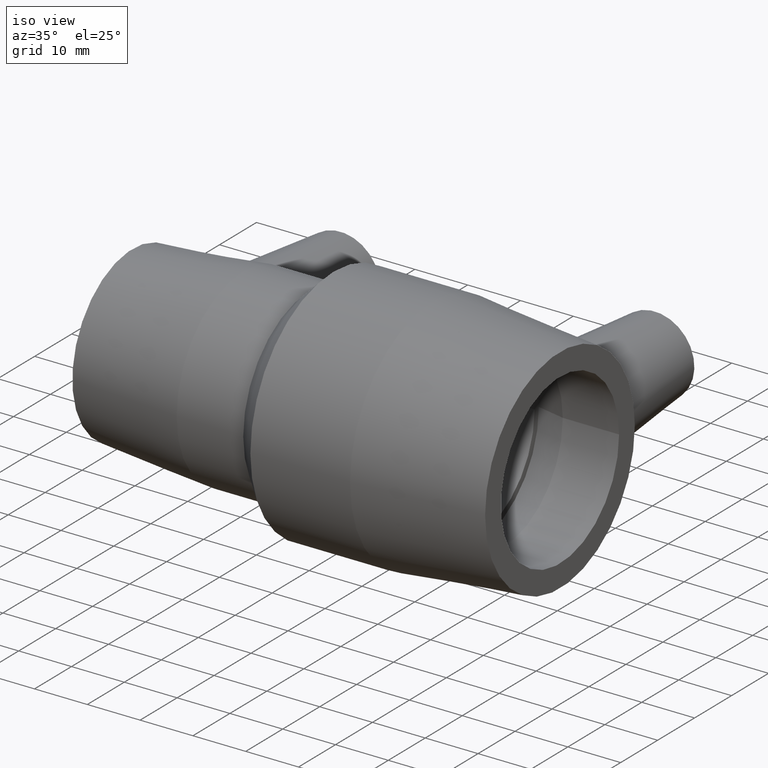
[diagram: clean part render]
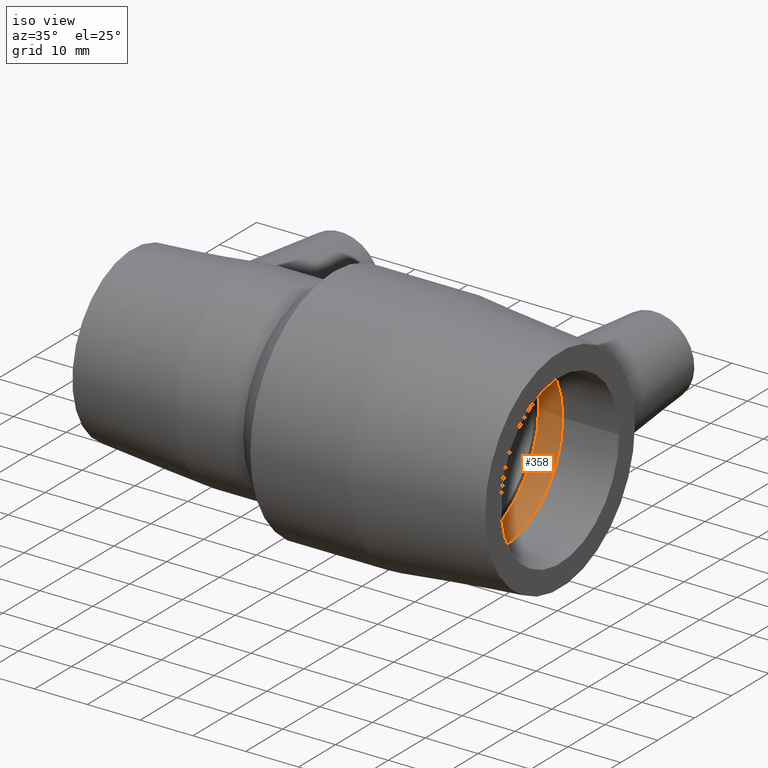
[diagram: same view with one face highlighted and labeled with its STEP entity id]
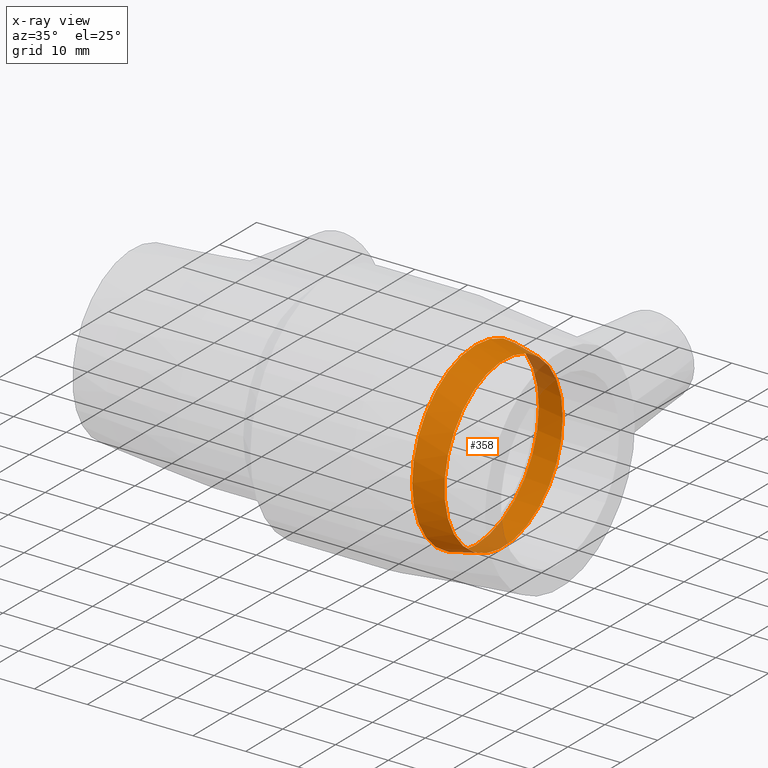
[diagram: x-ray of the same camera — body ghosted, the highlighted face saturated]
A machine part, iso view. The second image highlights one B-rep face of the part: STEP entity #358.
The next image is the same camera in x-ray: the body ghosted, the highlighted face saturated — about 10% of this face is hidden behind the body in this view.
In plain terms, the highlighted conical surface has half-angle 12 deg.
Its self-contained STEP definition (entity closure, byte-faithful):
#24=CONICAL_SURFACE('',#410,16.5668174977867,12.);
#45=FACE_BOUND('',#138,.T.);
#88=FACE_OUTER_BOUND('',#137,.T.);
#137=EDGE_LOOP('',(#299));
#138=EDGE_LOOP('',(#300));
#180=CIRCLE('',#409,16.);
#181=CIRCLE('',#411,17.1336349955734);
#212=VERTEX_POINT('',#697);
#213=VERTEX_POINT('',#700);
#246=EDGE_CURVE('',#212,#212,#180,.T.);
#247=EDGE_CURVE('',#213,#213,#181,.T.);
#299=ORIENTED_EDGE('',*,*,#247,.F.);
#300=ORIENTED_EDGE('',*,*,#246,.T.);
#358=ADVANCED_FACE('',(#88,#45),#24,.F.);
#409=AXIS2_PLACEMENT_3D('',#698,#509,#510);
#410=AXIS2_PLACEMENT_3D('',#699,#511,#512);
#411=AXIS2_PLACEMENT_3D('',#701,#513,#514);
#509=DIRECTION('center_axis',(1.,1.83697019872103E-16,0.));
#510=DIRECTION('ref_axis',(0.,0.,-1.));
#511=DIRECTION('center_axis',(-1.,-1.83697019872103E-16,0.));
#512=DIRECTION('ref_axis',(-1.96131485542617E-16,1.,0.));
#513=DIRECTION('center_axis',(1.,1.83697019872103E-16,0.));
#514=DIRECTION('ref_axis',(0.,0.,-1.));
#697=CARTESIAN_POINT('',(29.8333333333333,16.,0.));
#698=CARTESIAN_POINT('Origin',(29.8333333333333,1.29200237310046E-14,0.));
#699=CARTESIAN_POINT('Origin',(27.1666666666666,1.24301650113456E-14,0.));
#700=CARTESIAN_POINT('',(24.5,17.1336349955735,0.));
#701=CARTESIAN_POINT('Origin',(24.5,1.19403062916867E-14,0.));